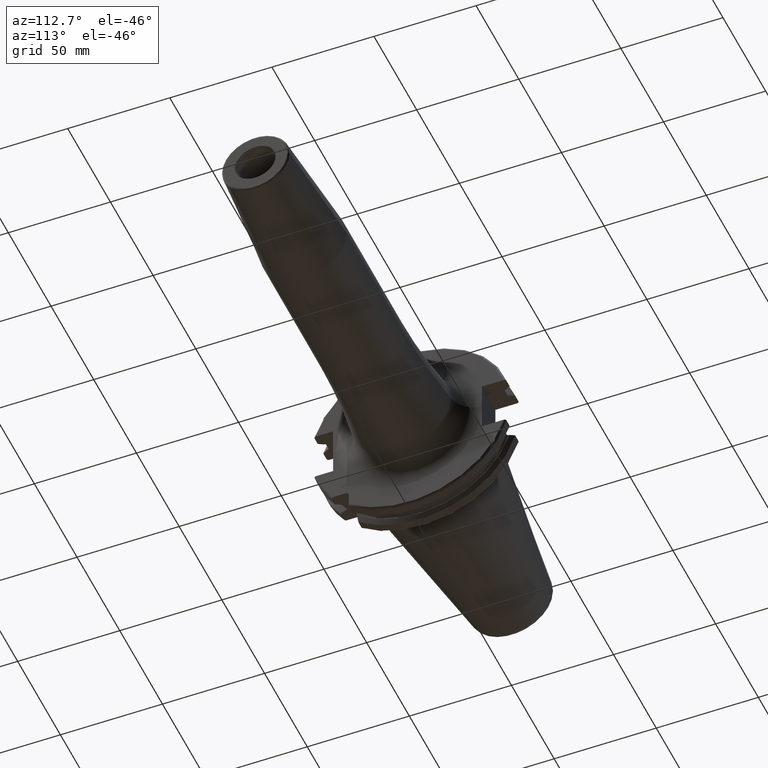
[diagram: clean part render]
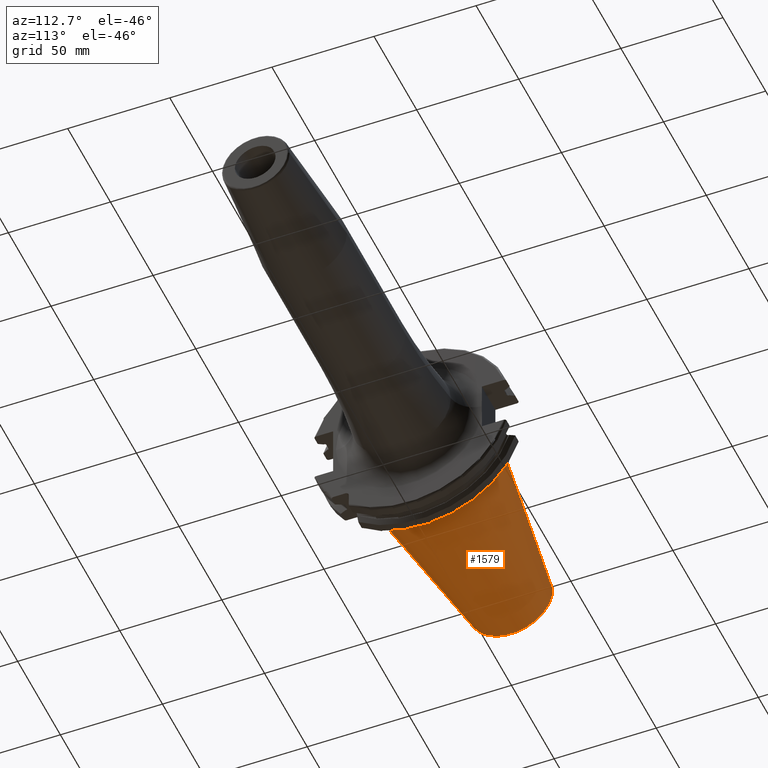
[diagram: same view with one face highlighted and labeled with its STEP entity id]
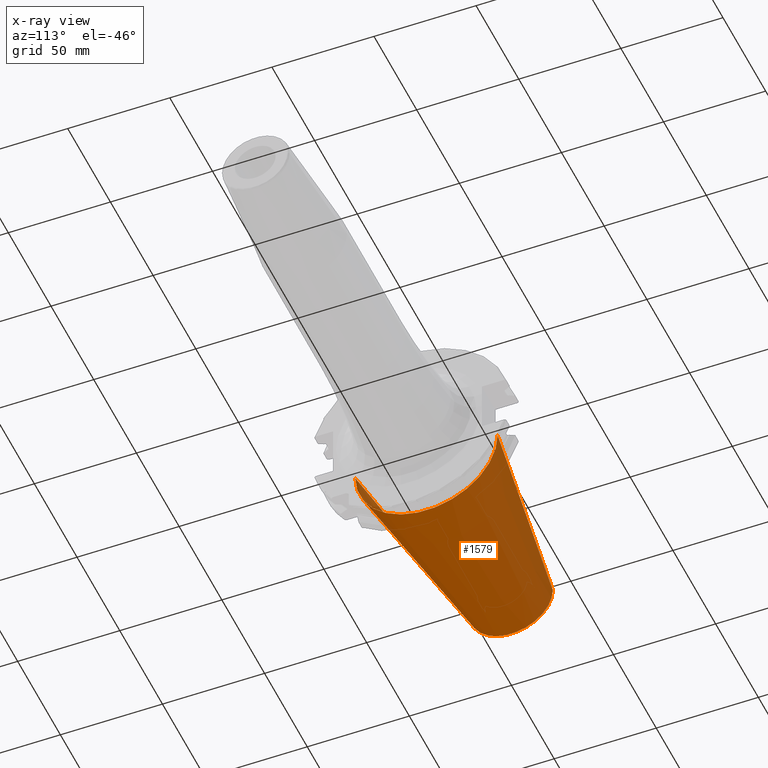
[diagram: x-ray of the same camera — body ghosted, the highlighted face saturated]
A machine part, auxiliary view. The second image highlights one B-rep face of the part: STEP entity #1579.
The next image is the same camera in x-ray: the body ghosted, the highlighted face saturated — about 2% of this face is hidden behind the body in this view.
In plain terms, the highlighted conical surface has half-angle 8.298 deg.
Its self-contained STEP definition (entity closure, byte-faithful):
#32=CARTESIAN_POINT('',(-9.967471700563E1,0.E0,0.E0));
#33=DIRECTION('',(-1.E0,0.E0,0.E0));
#34=DIRECTION('',(0.E0,1.E0,0.E0));
#35=AXIS2_PLACEMENT_3D('',#32,#33,#34);
#47=DIRECTION('',(-9.895312636440E-1,-1.443186691705E-1,0.E0));
#48=VECTOR('',#47,1.002343617797E2);
#49=CARTESIAN_POINT('',(-4.896823332305E-1,3.485358204157E1,0.E0));
#50=LINE('',#49,#48);
#51=DIRECTION('',(-9.895312636440E-1,1.443186691705E-1,0.E0));
#52=VECTOR('',#51,1.002343617797E2);
#53=CARTESIAN_POINT('',(-4.896823332305E-1,-3.485358204157E1,0.E0));
#54=LINE('',#53,#52);
#55=CARTESIAN_POINT('',(-4.896823332305E-1,0.E0,0.E0));
#56=DIRECTION('',(-1.E0,0.E0,0.E0));
#57=DIRECTION('',(0.E0,1.E0,0.E0));
#58=AXIS2_PLACEMENT_3D('',#55,#56,#57);
#1244=CARTESIAN_POINT('',(-9.967471700563E1,2.038789234437E1,0.E0));
#1246=VERTEX_POINT('',#1244);
#1248=CARTESIAN_POINT('',(-9.967471700563E1,-2.038789234437E1,0.E0));
#1250=VERTEX_POINT('',#1248);
#1312=CARTESIAN_POINT('',(-4.896823332305E-1,3.485358204157E1,0.E0));
#1313=VERTEX_POINT('',#1312);
#1314=CARTESIAN_POINT('',(-4.896823332305E-1,-3.485358204157E1,0.E0));
#1315=VERTEX_POINT('',#1314);
#1567=CARTESIAN_POINT('',(-5.008219966943E1,0.E0,0.E0));
#1568=DIRECTION('',(1.E0,0.E0,0.E0));
#1569=DIRECTION('',(0.E0,-1.E0,0.E0));
#1570=AXIS2_PLACEMENT_3D('',#1567,#1568,#1569);
#1571=CONICAL_SURFACE('',#1570,2.762073719297E1,8.297826828206E0);
#1572=ORIENTED_EDGE('',*,*,#1557,.T.);
#1573=ORIENTED_EDGE('',*,*,#1534,.T.);
#1574=ORIENTED_EDGE('',*,*,#1561,.F.);
#1576=ORIENTED_EDGE('',*,*,#1575,.F.);
#1577=EDGE_LOOP('',(#1572,#1573,#1574,#1576));
#1578=FACE_OUTER_BOUND('',#1577,.F.);
#1579=ADVANCED_FACE('',(#1578),#1571,.T.);
#36=CIRCLE('',#35,2.038789234437E1);
#59=CIRCLE('',#58,3.485358204157E1);
#1534=EDGE_CURVE('',#1246,#1250,#36,.T.);
#1557=EDGE_CURVE('',#1313,#1246,#50,.T.);
#1561=EDGE_CURVE('',#1315,#1250,#54,.T.);
#1575=EDGE_CURVE('',#1313,#1315,#59,.T.);